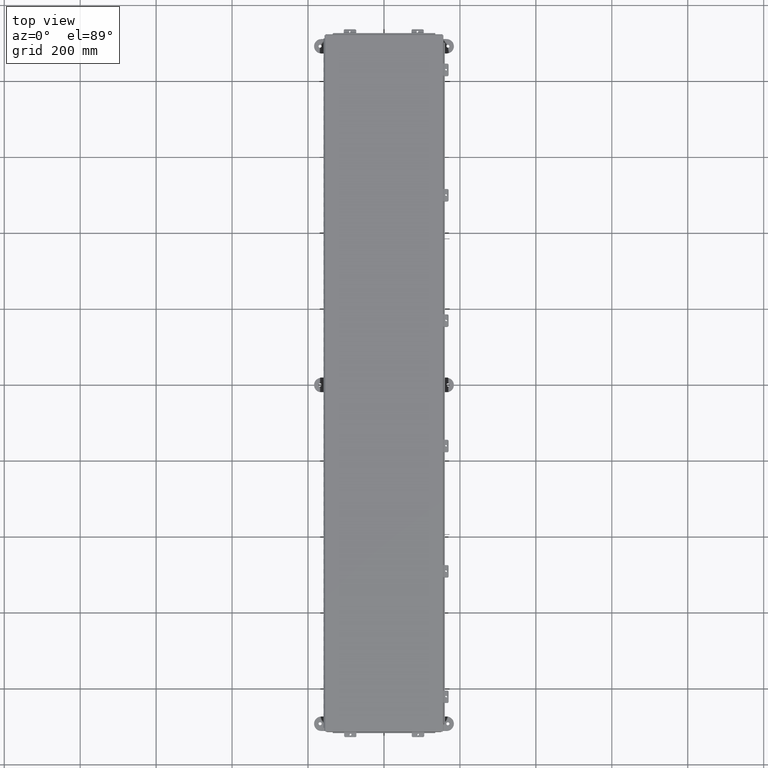
[diagram: clean part render]
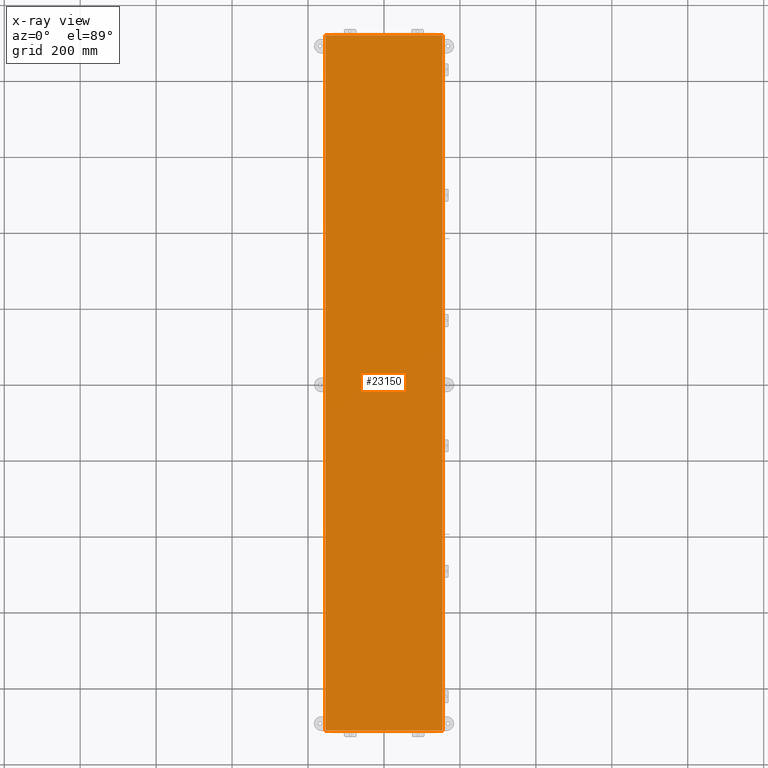
[diagram: x-ray — body ghosted, one internal face saturated and labeled with its STEP entity id]
A machine part, top view, then the same camera in x-ray: the body is ghosted and one INTERNAL B-rep face — a face not visible from any outside direction — is saturated and labeled: STEP entity #23150.
In plain terms, the highlighted planar face has unit normal (0, -0, 1).
Its self-contained STEP definition (entity closure, byte-faithful):
#681 = VECTOR ( 'NONE', #15167, 39.37007874015748100 ) ;
#3677 = CARTESIAN_POINT ( 'NONE',  ( 6.068550000000020500, 36.06855000000001600, 0.0000000000000000000 ) ) ;
#3910 = EDGE_CURVE ( 'NONE', #15482, #11121, #31046, .T. ) ;
#11121 = VERTEX_POINT ( 'NONE', #35468 ) ;
#12717 = VECTOR ( 'NONE', #13462, 39.37007874015748100 ) ;
#12774 = VECTOR ( 'NONE', #33654, 39.37007874015748100 ) ;
#13462 = DIRECTION ( 'NONE',  ( -1.597416264078259200E-028, -1.000000000000000000, 1.286829351641775500E-028 ) ) ;
#13840 = DIRECTION ( 'NONE',  ( 7.888609052210086500E-031, 1.287568908740415000E-028, -1.000000000000000000 ) ) ;
#14721 = VERTEX_POINT ( 'NONE', #45713 ) ;
#15167 = DIRECTION ( 'NONE',  ( -1.000000000000000000, -1.597416264078256300E-028, -7.888609052210086500E-031 ) ) ;
#15482 = VERTEX_POINT ( 'NONE', #3677 ) ;
#15685 = ORIENTED_EDGE ( 'NONE', *, *, #3910, .F. ) ;
#20265 = LINE ( 'NONE', #42460, #681 ) ;
#23148 = LINE ( 'NONE', #25967, #12774 ) ;
#23150 = ADVANCED_FACE ( 'NONE', ( #27172 ), #33126, .F. ) ;
#25967 = CARTESIAN_POINT ( 'NONE',  ( -6.074478932188153400, 36.06855000000002300, 0.0000000000000000000 ) ) ;
#26974 = VECTOR ( 'NONE', #37583, 39.37007874015748100 ) ;
#27172 = FACE_OUTER_BOUND ( 'NONE', #48271, .T. ) ;
#29917 = CARTESIAN_POINT ( 'NONE',  ( -6.068550000000018800, -36.07447893218811400, -2.185478394931410600E-015 ) ) ;
#29964 = CARTESIAN_POINT ( 'NONE',  ( -6.068550000000018800, 36.06855000000002300, 0.0000000000000000000 ) ) ;
#31046 = LINE ( 'NONE', #40932, #12717 ) ;
#32011 = EDGE_CURVE ( 'NONE', #14721, #47327, #37357, .T. ) ;
#32677 = ORIENTED_EDGE ( 'NONE', *, *, #32757, .F. ) ;
#32757 = EDGE_CURVE ( 'NONE', #11121, #14721, #20265, .T. ) ;
#33126 = PLANE ( 'NONE',  #38921 ) ;
#33654 = DIRECTION ( 'NONE',  ( 1.000000000000000000, 1.597416264078256300E-028, 7.888609052210086500E-031 ) ) ;
#35468 = CARTESIAN_POINT ( 'NONE',  ( 6.068550000000020500, -36.06854999999998100, -2.185478394931410600E-015 ) ) ;
#37204 = CARTESIAN_POINT ( 'NONE',  ( 0.0000000000000000000, 0.0000000000000000000, 0.0000000000000000000 ) ) ;
#37357 = LINE ( 'NONE', #29917, #26974 ) ;
#37583 = DIRECTION ( 'NONE',  ( 1.597416264078259200E-028, 1.000000000000000000, -1.286829351641775500E-028 ) ) ;
#38921 = AXIS2_PLACEMENT_3D ( 'NONE', #37204, #13840, #41136 ) ;
#40932 = CARTESIAN_POINT ( 'NONE',  ( 6.068550000000020500, 36.07447893218815000, 0.0000000000000000000 ) ) ;
#41136 = DIRECTION ( 'NONE',  ( -1.000000000000000000, -1.597416264078256300E-028, -7.888609052210086500E-031 ) ) ;
#42425 = EDGE_CURVE ( 'NONE', #47327, #15482, #23148, .T. ) ;
#42460 = CARTESIAN_POINT ( 'NONE',  ( 6.074478932188155200, -36.06854999999998800, 0.0000000000000000000 ) ) ;
#45028 = ORIENTED_EDGE ( 'NONE', *, *, #42425, .F. ) ;
#45713 = CARTESIAN_POINT ( 'NONE',  ( -6.068550000000018800, -36.06854999999998800, 0.0000000000000000000 ) ) ;
#47327 = VERTEX_POINT ( 'NONE', #29964 ) ;
#48271 = EDGE_LOOP ( 'NONE', ( #15685, #45028, #49094, #32677 ) ) ;
#49094 = ORIENTED_EDGE ( 'NONE', *, *, #32011, .F. ) ;